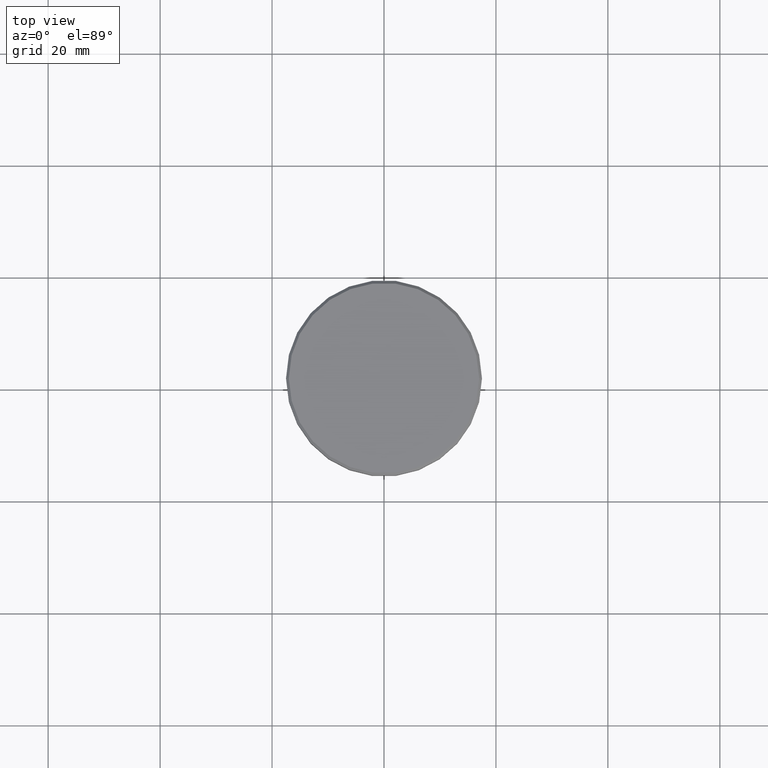
[diagram: clean part render]
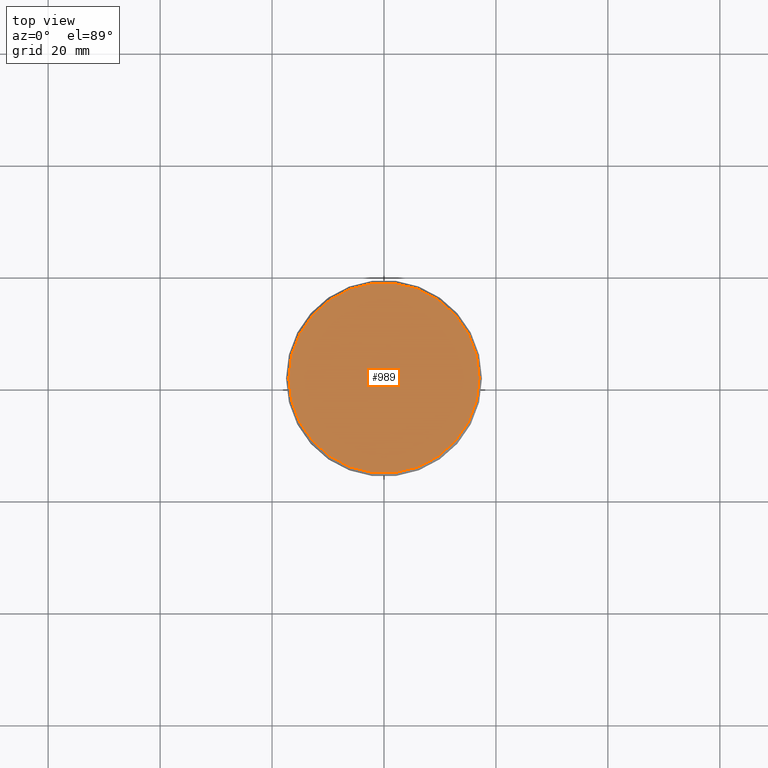
[diagram: same view with one face highlighted and labeled with its STEP entity id]
A machine part, top view. The second image highlights one B-rep face of the part: STEP entity #989.
In plain terms, the highlighted planar face has unit normal (0, -0, 1).
Its self-contained STEP definition (entity closure, byte-faithful):
#29 = EDGE_CURVE ( 'NONE', #1134, #929, #834, .T. ) ;
#35 = CARTESIAN_POINT ( 'NONE',  ( -17.00000000000002842, 0.000000000000000000, 0.000000000000000000 ) ) ;
#50 = CARTESIAN_POINT ( 'NONE',  ( 0.000000000000000000, 0.000000000000000000, 0.000000000000000000 ) ) ;
#129 = AXIS2_PLACEMENT_3D ( 'NONE', #50, #405, #1144 ) ;
#145 = DIRECTION ( 'NONE',  ( -0.000000000000000000, -0.000000000000000000, 1.000000000000000000 ) ) ;
#189 = CARTESIAN_POINT ( 'NONE',  ( 17.00000000000002842, 2.112515728529186039E-15, 0.000000000000000000 ) ) ;
#306 = AXIS2_PLACEMENT_3D ( 'NONE', #1049, #145, #636 ) ;
#405 = DIRECTION ( 'NONE',  ( -0.000000000000000000, -0.000000000000000000, 1.000000000000000000 ) ) ;
#413 = CARTESIAN_POINT ( 'NONE',  ( 0.000000000000000000, 0.000000000000000000, 0.000000000000000000 ) ) ;
#497 = FACE_OUTER_BOUND ( 'NONE', #609, .T. ) ;
#609 = EDGE_LOOP ( 'NONE', ( #1038, #1063 ) ) ;
#636 = DIRECTION ( 'NONE',  ( 1.000000000000000000, 0.000000000000000000, 0.000000000000000000 ) ) ;
#767 = AXIS2_PLACEMENT_3D ( 'NONE', #413, #971, #979 ) ;
#794 = PLANE ( 'NONE',  #767 ) ;
#807 = CIRCLE ( 'NONE', #306, 17.00000000000002842 ) ;
#834 = CIRCLE ( 'NONE', #129, 17.00000000000002842 ) ;
#929 = VERTEX_POINT ( 'NONE', #35 ) ;
#971 = DIRECTION ( 'NONE',  ( 0.000000000000000000, -0.000000000000000000, 1.000000000000000000 ) ) ;
#979 = DIRECTION ( 'NONE',  ( 1.000000000000000000, 0.000000000000000000, 0.000000000000000000 ) ) ;
#989 = ADVANCED_FACE ( 'NONE', ( #497 ), #794, .T. ) ;
#1038 = ORIENTED_EDGE ( 'NONE', *, *, #1092, .T. ) ;
#1049 = CARTESIAN_POINT ( 'NONE',  ( 0.000000000000000000, 0.000000000000000000, 0.000000000000000000 ) ) ;
#1063 = ORIENTED_EDGE ( 'NONE', *, *, #29, .T. ) ;
#1092 = EDGE_CURVE ( 'NONE', #929, #1134, #807, .T. ) ;
#1134 = VERTEX_POINT ( 'NONE', #189 ) ;
#1144 = DIRECTION ( 'NONE',  ( 1.000000000000000000, 0.000000000000000000, 0.000000000000000000 ) ) ;